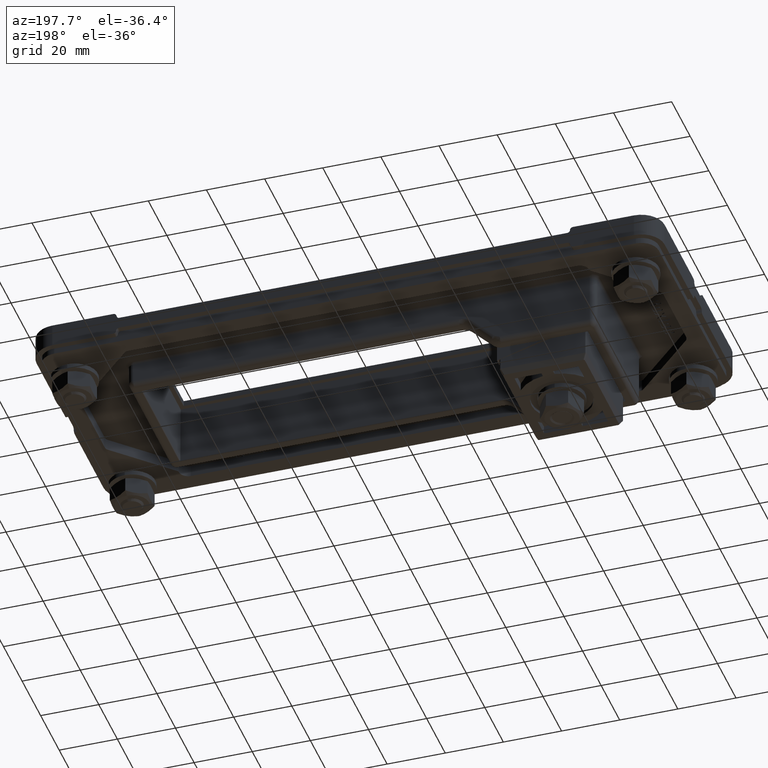
[diagram: clean part render]
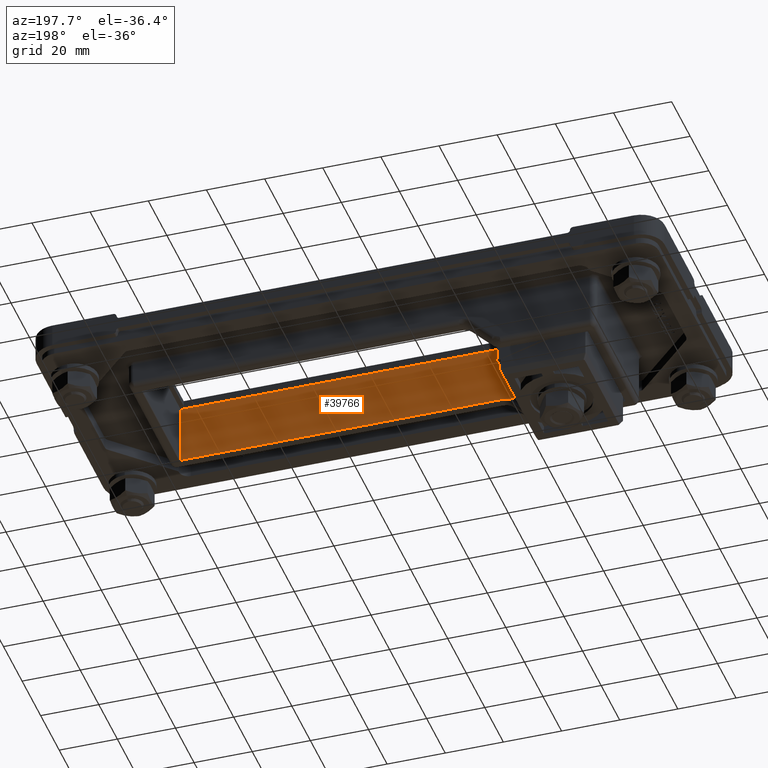
[diagram: same view with one face highlighted and labeled with its STEP entity id]
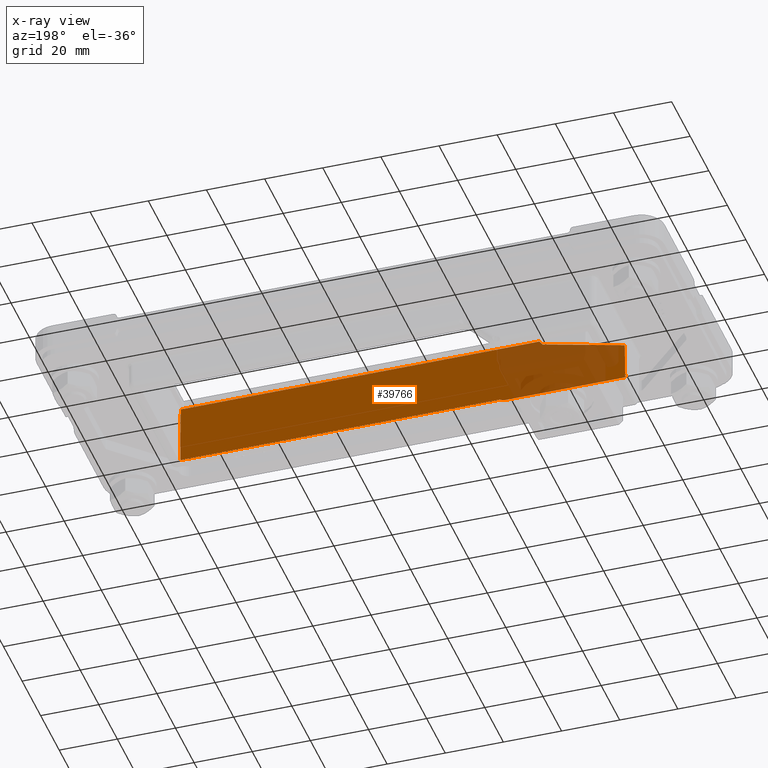
[diagram: x-ray of the same camera — body ghosted, the highlighted face saturated]
A machine part, auxiliary view. The second image highlights one B-rep face of the part: STEP entity #39766.
The next image is the same camera in x-ray: the body ghosted, the highlighted face saturated — about 23% of this face is hidden behind the body in this view.
In plain terms, the highlighted planar face has unit normal (0, 1, -0.0087).
Its self-contained STEP definition (entity closure, byte-faithful):
#112=CARTESIAN_POINT('',(46.495674643765419,-20.245674643765401,0.495636732250815));
#113=VERTEX_POINT('',#112);
#156=CARTESIAN_POINT('',(-63.428932188134524,-20.245674643765401,0.495636732250814));
#157=VERTEX_POINT('',#156);
#165=CARTESIAN_POINT('',(-63.428932188134524,-20.245674643765401,0.495636732250814));
#166=DIRECTION('',(1.0,0.0,0.0));
#167=VECTOR('',#166,109.92460683189994);
#168=LINE('',#165,#167);
#169=EDGE_CURVE('',#157,#113,#168,.T.);
#234=CARTESIAN_POINT('',(-65.71067456877347,-20.250000000003141,-3.597442E-010));
#235=VERTEX_POINT('',#234);
#236=CARTESIAN_POINT('',(-65.710674535843452,-20.250000000633428,-0.000000072582784));
#237=CARTESIAN_POINT('',(-64.99882969929206,-20.247167780757383,0.324540179882145));
#238=CARTESIAN_POINT('',(-64.208596523580169,-20.245674643765405,0.495636732250812));
#239=CARTESIAN_POINT('',(-63.428932188134524,-20.245674643765405,0.495636732250812));
#240=B_SPLINE_CURVE_WITH_KNOTS('',3,(#236,#237,#238,#239),.UNSPECIFIED.,.F.,.U.,(4,4),(0.307655735037915,0.541555035671607),.UNSPECIFIED.);
#241=EDGE_CURVE('',#235,#157,#240,.T.);
#253=CARTESIAN_POINT('',(-65.714628174517145,-20.250015747953,-0.001804536676213));
#254=VERTEX_POINT('',#253);
#274=CARTESIAN_POINT('',(-65.714628165115769,-20.250015747938214,-0.001804534981833));
#275=CARTESIAN_POINT('',(-65.713310463696345,-20.250010493870239,-0.001202478424864));
#276=CARTESIAN_POINT('',(-65.711992492887106,-20.250005244393535,-0.000600947975475));
#277=CARTESIAN_POINT('',(-65.710674253253018,-20.249999999509079,0.000000056254222));
#278=B_SPLINE_CURVE_WITH_KNOTS('',3,(#274,#275,#276,#277),.UNSPECIFIED.,.F.,.U.,(4,4),(0.307222616370619,0.307655765989276),.UNSPECIFIED.);
#279=EDGE_CURVE('',#254,#235,#278,.T.);
#307=CARTESIAN_POINT('',(-65.720220035612456,-20.25,-2.914148E-032));
#308=VERTEX_POINT('',#307);
#316=CARTESIAN_POINT('',(-65.720220035613551,-20.250000000000004,-5.073719E-013));
#317=CARTESIAN_POINT('',(-65.719471322640359,-20.250000000000004,-5.069730E-013));
#318=CARTESIAN_POINT('',(-65.718650353964506,-20.250000294649841,-0.000033763527418));
#319=CARTESIAN_POINT('',(-65.717051760541324,-20.250002197165969,-0.000251770282381));
#320=CARTESIAN_POINT('',(-65.716273820756072,-20.250003784819171,-0.000433697319765));
#321=CARTESIAN_POINT('',(-65.715338715291111,-20.250008357559544,-0.000957681466859));
#322=CARTESIAN_POINT('',(-65.715033397343419,-20.250010444698617,-0.001196843915299));
#323=CARTESIAN_POINT('',(-65.714760228114301,-20.250013588649129,-0.00155710496092));
#324=CARTESIAN_POINT('',(-65.71468643849046,-20.250014635642128,-0.001677078475308));
#325=CARTESIAN_POINT('',(-65.714628174517813,-20.250015747953,-0.001804536676519));
#326=B_SPLINE_CURVE_WITH_KNOTS('',3,(#316,#317,#318,#319,#320,#321,#322,#323,#324,#325),.UNSPECIFIED.,.F.,.U.,(4,2,2,2,4),(-4.167967895801627,-4.167743281909711,-4.167518668017798,-4.167421707303453,-4.167383029748947),.UNSPECIFIED.);
#327=EDGE_CURVE('',#308,#254,#326,.T.);
#754=CARTESIAN_POINT('',(46.316735776394097,-20.066735776394061,21.0));
#755=VERTEX_POINT('',#754);
#756=CARTESIAN_POINT('',(46.495674643765419,-20.245674643765401,0.495636732250816));
#757=DIRECTION('',(-0.008726203243944,0.008726203243944,0.99992385047757));
#758=VECTOR('',#757,20.505924784128471);
#759=LINE('',#756,#758);
#760=EDGE_CURVE('',#113,#755,#759,.T.);
#23525=CARTESIAN_POINT('',(-77.015260226024509,-20.066735776394061,20.999999999999996));
#23526=VERTEX_POINT('',#23525);
#23527=CARTESIAN_POINT('',(-77.015260226024509,-20.066735776394069,20.999999999999996));
#23528=DIRECTION('',(1.0,0.0,0.0));
#23529=VECTOR('',#23528,123.33199600241861);
#23530=LINE('',#23527,#23529);
#23531=EDGE_CURVE('',#23526,#755,#23530,.T.);
#23587=CARTESIAN_POINT('',(-78.16897413582565,-20.079407966922169,19.547910793203314));
#23588=VERTEX_POINT('',#23587);
#23589=CARTESIAN_POINT('',(-78.16897413582565,-20.079407966922169,19.547910793203318));
#23590=DIRECTION('',(0.622060794807975,0.00683260628558,0.782939131129756));
#23591=VECTOR('',#23590,1.85466423769285);
#23592=LINE('',#23589,#23591);
#23593=EDGE_CURVE('',#23526,#23588,#23592,.F.);
#39668=CARTESIAN_POINT('',(-106.38655071872007,-20.136550718720137,12.999999999999993));
#39669=VERTEX_POINT('',#39668);
#39670=CARTESIAN_POINT('',(-106.38655071872007,-20.136550718720137,12.999999999999993));
#39671=DIRECTION('',(0.97411505723463,0.001972657530483,0.226044163585441));
#39672=VECTOR('',#39671,28.967395969630136);
#39673=LINE('',#39670,#39672);
#39674=EDGE_CURVE('',#39669,#23588,#39673,.T.);
#39737=CARTESIAN_POINT('',(8.250000000000011,-20.154004454301653,10.999999999999998));
#39738=DIRECTION('',(1.109874E-034,0.999961923064171,-0.008726535498374));
#39739=DIRECTION('',(0.0,0.008726535498374,0.999961923064171));
#39740=AXIS2_PLACEMENT_3D('',#39737,#39738,#39739);
#39741=PLANE('',#39740);
#39742=ORIENTED_EDGE('',*,*,#241,.F.);
#39743=ORIENTED_EDGE('',*,*,#279,.F.);
#39744=ORIENTED_EDGE('',*,*,#327,.F.);
#39745=CARTESIAN_POINT('',(-106.49999999999994,-20.25,-1.578675E-030));
#39746=VERTEX_POINT('',#39745);
#39747=CARTESIAN_POINT('',(-65.720220035612442,-20.25,-1.056698E-030));
#39748=DIRECTION('',(-1.0,0.0,0.0));
#39749=VECTOR('',#39748,40.779779964387501);
#39750=LINE('',#39747,#39749);
#39751=EDGE_CURVE('',#308,#39746,#39750,.T.);
#39752=ORIENTED_EDGE('',*,*,#39751,.T.);
#39753=CARTESIAN_POINT('',(-106.38655071872009,-20.136550718720134,12.999999999999993));
#39754=DIRECTION('',(-0.008726203243945,-0.008726203243944,-0.99992385047757));
#39755=VECTOR('',#39754,13.000990019181065);
#39756=LINE('',#39753,#39755);
#39757=EDGE_CURVE('',#39669,#39746,#39756,.T.);
#39758=ORIENTED_EDGE('',*,*,#39757,.F.);
#39759=ORIENTED_EDGE('',*,*,#39674,.T.);
#39760=ORIENTED_EDGE('',*,*,#23593,.F.);
#39761=ORIENTED_EDGE('',*,*,#23531,.T.);
#39762=ORIENTED_EDGE('',*,*,#760,.F.);
#39763=ORIENTED_EDGE('',*,*,#169,.F.);
#39764=EDGE_LOOP('',(#39742,#39743,#39744,#39752,#39758,#39759,#39760,#39761,#39762,#39763));
#39765=FACE_OUTER_BOUND('',#39764,.T.);
#39766=ADVANCED_FACE('',(#39765),#39741,.T.);